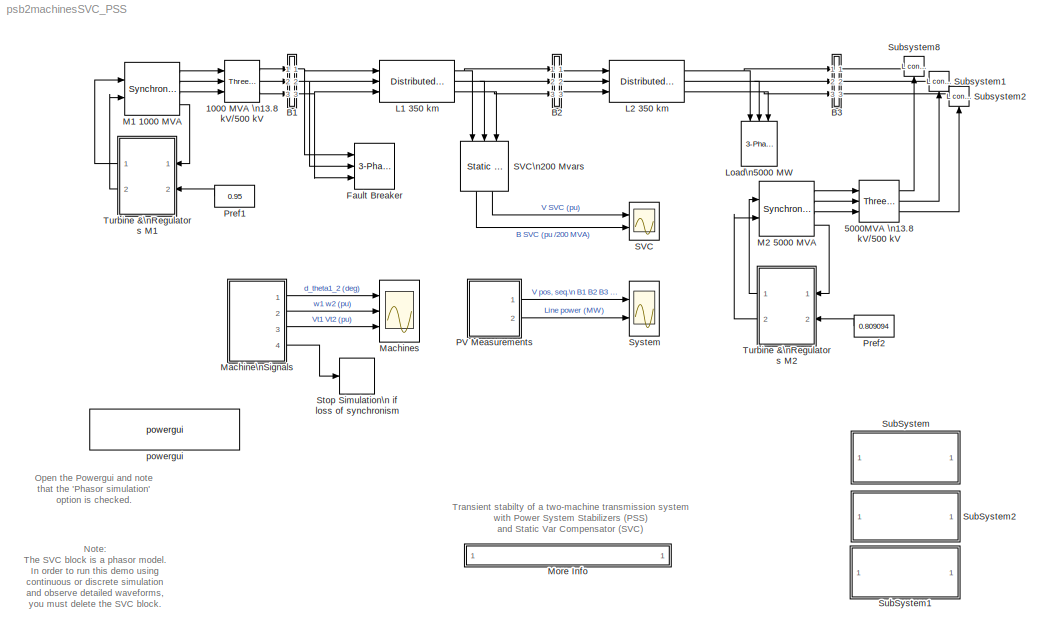
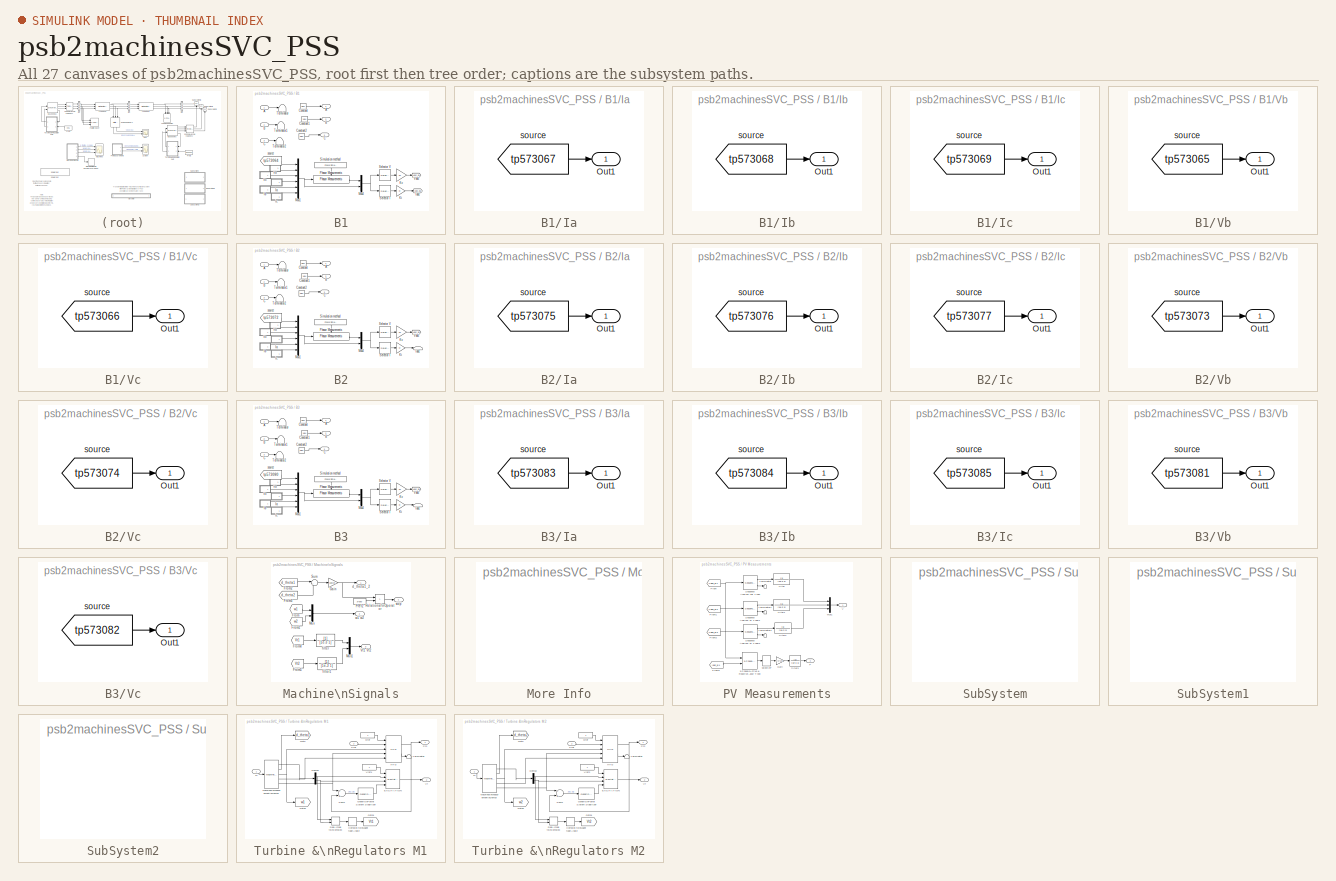
[diagram: thumbnail index - all 27 canvases of the model, root first then tree order]
MODEL psb2machinesSVC_PSS
KIND model
CONFIG InitFcn = powericon('psbinitsys',bdroot);
BLOCK [Reference] 1000 MVA \n13.8 kV//500 kV  REF=powerlib2/Elements/Three-phase\nTransformer\n(Two Windings)
  PSBOutputType = 1111
  Ports = [3, 3]
  ShowPortLabels = on
  SourceBlock = powerlib2/Elements/Three-phase\nTransformer\n(Two Windings)
  SourceType = Three-Phase Transformer (Two Windings)
  Tag = PoWeRsYsTeMbLoCk
  hyst = off
  initialslopes = [+1 +1 +1]
  lm = 500
  matfile = 'hysteresis'
  mesure = None
  nominal = [ 1000e6 60 ]
  params1 = [ 13.8e3 0.002  0.0]
  params2 = [ 500e3 0.002 0.12]
  phi0 = [ 0.8 , -0.8 , 0.7 ]
  rmag = 500
  sat = [ 0,0  ;  0.005,1.2  ;  1.0,1.4 ]
  sif = off
  type1 = Delta (D1)
  type2 = Yg
  ynsat = off
BLOCK [Reference] 5000MVA \n13.8 kV//500 kV  REF=powerlib2/Elements/Three-phase\nTransformer\n(Two Windings)
  PSBOutputType = 1111
  Ports = [3, 3]
  ShowPortLabels = on
  SourceBlock = powerlib2/Elements/Three-phase\nTransformer\n(Two Windings)
  SourceType = Three-Phase Transformer (Two Windings)
  Tag = PoWeRsYsTeMbLoCk
  hyst = off
  initialslopes = [+1 +1 +1]
  lm = 500
  matfile = 'hysteresis'
  mesure = None
  nominal = [ 5000e6 60 ]
  params1 = [ 13.8e3 0.002  0.0]
  params2 = [ 500e3 0.002 0.12]
  phi0 = [ 0.8 , -0.8 , 0.7 ]
  rmag = 500
  sat = [ 0,0  ;  0.005,1.2  ;  1.0,1.4 ]
  sif = off
  type1 = Delta (D1)
  type2 = Yg
  ynsat = off
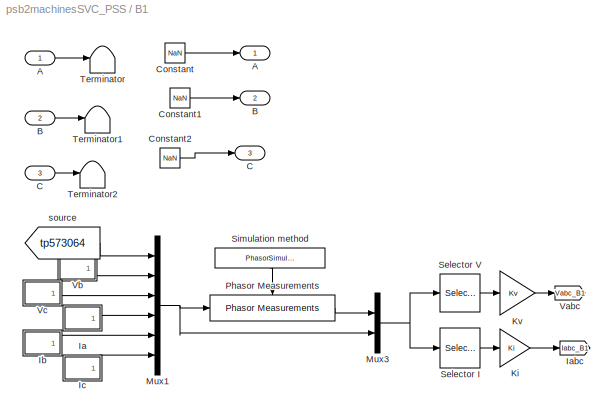
BLOCK [SubSystem] B1
  AncestorBlock = powerlib2/Measurements/Three-Phase\nV-I Measurement
  CloseFcn = %3phaseVImeasurement
  CopyFcn = powericon('psbloadfunction',gcbh,'3-Phase VI Measurement','VerifyPhasor');
  InitFcn = powericon('checksum',bdroot)
  LoadFcn = powericon('psbloadfunction',gcbh,'3-Phase VI Measurement','');
  MaskCallbackString = powericon('psbcallbacks',gcb,'Three-phase measurements',2);|powericon('psbcallbacks',gcb,'Three-phase measurements',2);||powericon('psbcallbacks',gcb,'Three-phase measurements',2);||powericon('psbcallbacks',gcb,'Three-phase measurements',2);|powericon('psbcallbacks',gcb,'Three-phase measurements',2);||powericon('psbcallbacks',gcb,'Three-phase measurements',4);|||||  <repeated x3 — deduplicated; at blocks: B1, B2, B3>
  MaskDescription = This block is used to measure three-phase voltages and currents in a circuit. When connected in series with a three-phase element, it return the three phase-to-ground voltages and line currents.\n\nThe block can output the voltages and currents in per unit values or in volts and amperes. Check the appropriate boxes if you want to output the voltages and currents  in pu  <repeated x3 — deduplicated; at blocks: B1, B2, B3>
  MaskEnableString = on,on,on,on,on,on,on,on,on,on,on,on,on,on
  MaskHelp = web(psbhelp)
  MaskIconFrame = on
  MaskIconOpaque = on
  MaskIconRotate = none
  MaskIconUnits = autoscale
  MaskInitialization = powericon('psbcallbacks',gcb,'Three-phase measurements',4);\nif  Vpu\n    xKv=1/(Vbase/sqrt(3)*sqrt(2));\nelse\n    xKv=1;\nend\nif  Ppu\n    xKi=1/(Pbase/Vbase/sqrt(3)*sqrt(2));\nelse\n    xKi=1;\nend\nswitch OutputType\ncase 1\n    OutputSelection  = [1:6];\n    PhasorModeV = [1:3];\n    NormalModeV = [7:9];\n    PhasorModeI = [4:6];\n    NormalModeI = [10:12];\n    Kv = xKv;\n    Ki = xKi;\ncas...<+826ch>  <repeated x3 — deduplicated; at blocks: B1, B2, B3>
  MaskPromptString = Voltage measurement|Use a label |Signal label  (use a From block to collect signal)|Voltage  in pu|Base voltage (Vrms phase-phase) :|Current measurement|Use a label|Signal label  (use a From block to collect signal)|Currents in pu|Base power ( VA 3 phase)|Output signal :|Phasor simulation|Equivalent circuit|PSBOutputType  <repeated x3 — deduplicated; at blocks: B1, B2, B3>
  MaskSelfModifiable = on
  MaskStyleString = popup(no|phase-to-ground|phase-to-phase),checkbox,edit,checkbox,edit,popup(no|yes),checkbox,edit,checkbox,edit,popup(Complex|Real-Imag|Magnitude-Angle|Magnitude),checkbox,edit,edit
  MaskTabNameString = ,,,,,,,,,,,,,
  MaskToolTipString = on,on,on,on,on,on,on,on,on,on,on,on,on,on
  MaskTunableValueString = off,off,off,on,on,off,off,off,on,on,on,on,on,on
  MaskType = 3-Phase VI Measurement
  MaskValueString = phase-to-ground|on|Vabc_B1|on|500e3|yes|on|Iabc_B1|on|100e6|Complex|on|0|11100
  MaskVarAliasString = ,,,,,,,,,,,,,
  MaskVariables = VChoice=@1;ualv=@2;labelV=&3;Vpu=@4;Vbase=@5;IChoice=@6;ualc=@7;labelC=&8;Ppu=@9;Pbase=@10;OutputType=@11;PhasorSimulation=@12;PSBequivalent=@13;PSBOutputType=&14;
  MaskVisibilityString = on,on,on,on,on,on,on,on,on,on,on,off,off,off
  MinAlgLoopOccurrences = off
  Ports = [3, 3]
  RTWSystemCode = Auto
  Tag = PoWeRsYsTeMmEaSuReMeNt
  TreatAsAtomicUnit = off
BLOCK [Inport] B1/A
  IconDisplay = Port number
  LatchInput = off
  Port = 1
BLOCK [Outport] B1/A 
  IconDisplay = Port number
BLOCK [Inport] B1/B
  IconDisplay = Port number
  LatchInput = off
  Port = 2
BLOCK [Outport] B1/B 
  IconDisplay = Port number
  Port = 2
BLOCK [Inport] B1/C
  IconDisplay = Port number
  LatchInput = off
  Port = 3
BLOCK [Outport] B1/C 
  IconDisplay = Port number
  Port = 3
BLOCK [Constant] B1/Constant
  Value = NaN
BLOCK [Constant] B1/Constant1
  Value = NaN
BLOCK [Constant] B1/Constant2
  Value = NaN
BLOCK [SubSystem] B1/Ia
  AncestorBlock = powerlib2/Measurements/Three-Phase\nV-I Measurement/Ia
  MinAlgLoopOccurrences = off
  Ports = [0, 1]
  RTWSystemCode = Auto
  TreatAsAtomicUnit = off
BLOCK [Outport] B1/Ia/Out1
  IconDisplay = Port number
BLOCK [From] B1/Ia/source
  DialogController = Simulink.DDGSource
  GotoTag = tp573067
BLOCK [Goto] B1/Iabc
  DialogController = Simulink.DDGSource
  GotoTag = Iabc_B1
  TagVisibility = global
BLOCK [SubSystem] B1/Ib
  AncestorBlock = powerlib2/Measurements/Three-Phase\nV-I Measurement/Ib
  MinAlgLoopOccurrences = off
  Ports = [0, 1]
  RTWSystemCode = Auto
  TreatAsAtomicUnit = off
BLOCK [Outport] B1/Ib/Out1
  IconDisplay = Port number
BLOCK [From] B1/Ib/source
  DialogController = Simulink.DDGSource
  GotoTag = tp573068
BLOCK [SubSystem] B1/Ic
  AncestorBlock = powerlib2/Measurements/Three-Phase\nV-I Measurement/Ic
  MinAlgLoopOccurrences = off
  Ports = [0, 1]
  RTWSystemCode = Auto
  TreatAsAtomicUnit = off
BLOCK [Outport] B1/Ic/Out1
  IconDisplay = Port number
BLOCK [From] B1/Ic/source
  DialogController = Simulink.DDGSource
  GotoTag = tp573069
BLOCK [Gain] B1/Ki
  Gain = Ki
BLOCK [Gain] B1/Kv
  Gain = Kv
BLOCK [Mux] B1/Mux1
  DisplayOption = bar
  Inputs = 6
  Ports = [6, 1]
BLOCK [Mux] B1/Mux3
  DisplayOption = bar
  Inputs = 2
  Ports = [2, 1]
BLOCK [Reference] B1/Phasor Measurements  REF=powerlib2/Measurements/Three-Phase\nV-I Measurement/Phasor Measurements
  DataTypeOverride = UseLocalSettings
  MinMaxOverflowLogging = UseLocalSettings
  Permissions = ReadWrite
  Ports = [1, 1, 1]
  RTWFcnNameOpts = Auto
  RTWFileNameOpts = Auto
  RTWSystemCode = Auto
  ShowPortLabels = on
  SimViewingDevice = off
  SourceBlock = powerlib2/Measurements/Three-Phase\nV-I Measurement/Phasor Measurements
  SourceType = SubSystem
  TreatAsAtomicUnit = on
BLOCK [Selector] B1/Selector I
  Elements = SelectionModeI
  InputPortWidth = length(OutputSelection)+6
  Ports = [1, 1]
BLOCK [Selector] B1/Selector V
  Elements = SelectionModeV
  InputPortWidth = length(OutputSelection)+6
  Ports = [1, 1]
BLOCK [Constant] B1/Simulation method
  Value = PhasorSimulation
BLOCK [Terminator] B1/Terminator
BLOCK [Terminator] B1/Terminator1
BLOCK [Terminator] B1/Terminator2
BLOCK [Goto] B1/Vabc
  DialogController = Simulink.DDGSource
  GotoTag = Vabc_B1
  TagVisibility = global
BLOCK [SubSystem] B1/Vb
  AncestorBlock = powerlib2/Measurements/Three-Phase\nV-I Measurement/Vb
  MinAlgLoopOccurrences = off
  Ports = [0, 1]
  RTWSystemCode = Auto
  TreatAsAtomicUnit = off
BLOCK [Outport] B1/Vb/Out1
  IconDisplay = Port number
BLOCK [From] B1/Vb/source
  DialogController = Simulink.DDGSource
  GotoTag = tp573065
BLOCK [SubSystem] B1/Vc
  AncestorBlock = powerlib2/Measurements/Three-Phase\nV-I Measurement/Vc
  MinAlgLoopOccurrences = off
  Ports = [0, 1]
  RTWSystemCode = Auto
  TreatAsAtomicUnit = off
BLOCK [Outport] B1/Vc/Out1
  IconDisplay = Port number
BLOCK [From] B1/Vc/source
  DialogController = Simulink.DDGSource
  GotoTag = tp573066
BLOCK [From] B1/source
  DialogController = Simulink.DDGSource
  GotoTag = tp573064
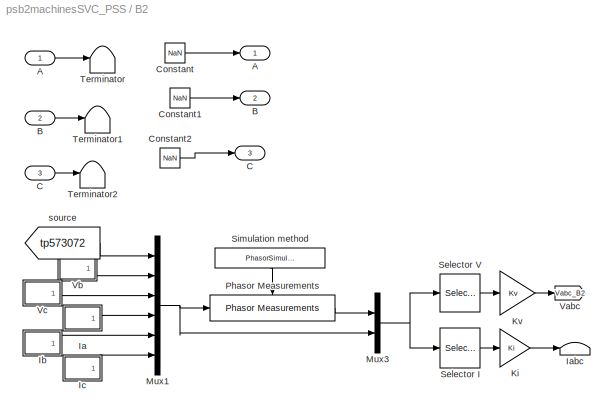
BLOCK [SubSystem] B2
  AncestorBlock = powerlib2/Measurements/Three-Phase\nV-I Measurement
  CloseFcn = %3phaseVImeasurement
  CopyFcn = powericon('psbloadfunction',gcbh,'3-Phase VI Measurement','VerifyPhasor');
  InitFcn = powericon('checksum',bdroot)
  LoadFcn = powericon('psbloadfunction',gcbh,'3-Phase VI Measurement','');
  MaskEnableString = on,on,on,on,on,on,on,on,on,on,on,on,on,on
  MaskHelp = web(psbhelp)
  MaskIconFrame = on
  MaskIconOpaque = on
  MaskIconRotate = none
  MaskIconUnits = autoscale
  MaskSelfModifiable = on
  MaskStyleString = popup(no|phase-to-ground|phase-to-phase),checkbox,edit,checkbox,edit,popup(no|yes),checkbox,edit,checkbox,edit,popup(Complex|Real-Imag|Magnitude-Angle|Magnitude),checkbox,edit,edit
  MaskTabNameString = ,,,,,,,,,,,,,
  MaskToolTipString = on,on,on,on,on,on,on,on,on,on,on,on,on,on
  MaskTunableValueString = off,off,off,on,on,off,off,off,on,on,on,on,on,on
  MaskType = 3-Phase VI Measurement
  MaskValueString = phase-to-ground|on|Vabc_B2|on|500e3|no|off|I1|off|100e6|Complex|on|0|11100
  MaskVarAliasString = ,,,,,,,,,,,,,
  MaskVariables = VChoice=@1;ualv=@2;labelV=&3;Vpu=@4;Vbase=@5;IChoice=@6;ualc=@7;labelC=&8;Ppu=@9;Pbase=@10;OutputType=@11;PhasorSimulation=@12;PSBequivalent=@13;PSBOutputType=&14;
  MaskVisibilityString = on,on,on,on,on,on,off,off,off,off,on,off,off,off
  MinAlgLoopOccurrences = off
  Ports = [3, 3]
  RTWSystemCode = Auto
  Tag = PoWeRsYsTeMmEaSuReMeNt
  TreatAsAtomicUnit = off
BLOCK [Inport] B2/A
  IconDisplay = Port number
  LatchInput = off
  Port = 1
BLOCK [Outport] B2/A 
  IconDisplay = Port number
BLOCK [Inport] B2/B
  IconDisplay = Port number
  LatchInput = off
  Port = 2
BLOCK [Outport] B2/B 
  IconDisplay = Port number
  Port = 2
BLOCK [Inport] B2/C
  IconDisplay = Port number
  LatchInput = off
  Port = 3
BLOCK [Outport] B2/C 
  IconDisplay = Port number
  Port = 3
BLOCK [Constant] B2/Constant
  Value = NaN
BLOCK [Constant] B2/Constant1
  Value = NaN
BLOCK [Constant] B2/Constant2
  Value = NaN
BLOCK [SubSystem] B2/Ia
  AncestorBlock = powerlib2/Measurements/Three-Phase\nV-I Measurement/Ia
  MinAlgLoopOccurrences = off
  Ports = [0, 1]
  RTWSystemCode = Auto
  TreatAsAtomicUnit = off
BLOCK [Outport] B2/Ia/Out1
  IconDisplay = Port number
BLOCK [From] B2/Ia/source
  DialogController = Simulink.DDGSource
  GotoTag = tp573075
BLOCK [Terminator] B2/Iabc
BLOCK [SubSystem] B2/Ib
  AncestorBlock = powerlib2/Measurements/Three-Phase\nV-I Measurement/Ib
  MinAlgLoopOccurrences = off
  Ports = [0, 1]
  RTWSystemCode = Auto
  TreatAsAtomicUnit = off
BLOCK [Outport] B2/Ib/Out1
  IconDisplay = Port number
BLOCK [From] B2/Ib/source
  DialogController = Simulink.DDGSource
  GotoTag = tp573076
BLOCK [SubSystem] B2/Ic
  AncestorBlock = powerlib2/Measurements/Three-Phase\nV-I Measurement/Ic
  MinAlgLoopOccurrences = off
  Ports = [0, 1]
  RTWSystemCode = Auto
  TreatAsAtomicUnit = off
BLOCK [Outport] B2/Ic/Out1
  IconDisplay = Port number
BLOCK [From] B2/Ic/source
  DialogController = Simulink.DDGSource
  GotoTag = tp573077
BLOCK [Gain] B2/Ki
  Gain = Ki
BLOCK [Gain] B2/Kv
  Gain = Kv
BLOCK [Mux] B2/Mux1
  DisplayOption = bar
  Inputs = 6
  Ports = [6, 1]
BLOCK [Mux] B2/Mux3
  DisplayOption = bar
  Inputs = 2
  Ports = [2, 1]
BLOCK [Reference] B2/Phasor Measurements  REF=powerlib2/Measurements/Three-Phase\nV-I Measurement/Phasor Measurements
  DataTypeOverride = UseLocalSettings
  MinMaxOverflowLogging = UseLocalSettings
  Permissions = ReadWrite
  Ports = [1, 1, 1]
  RTWFcnNameOpts = Auto
  RTWFileNameOpts = Auto
  RTWSystemCode = Auto
  ShowPortLabels = on
  SimViewingDevice = off
  SourceBlock = powerlib2/Measurements/Three-Phase\nV-I Measurement/Phasor Measurements
  SourceType = SubSystem
  TreatAsAtomicUnit = on
BLOCK [Selector] B2/Selector I
  Elements = SelectionModeI
  InputPortWidth = length(OutputSelection)+6
  Ports = [1, 1]
BLOCK [Selector] B2/Selector V
  Elements = SelectionModeV
  InputPortWidth = length(OutputSelection)+6
  Ports = [1, 1]
BLOCK [Constant] B2/Simulation method
  Value = PhasorSimulation
BLOCK [Terminator] B2/Terminator
BLOCK [Terminator] B2/Terminator1
BLOCK [Terminator] B2/Terminator2
BLOCK [Goto] B2/Vabc
  DialogController = Simulink.DDGSource
  GotoTag = Vabc_B2
  TagVisibility = global
BLOCK [SubSystem] B2/Vb
  AncestorBlock = powerlib2/Measurements/Three-Phase\nV-I Measurement/Vb
  MinAlgLoopOccurrences = off
  Ports = [0, 1]
  RTWSystemCode = Auto
  TreatAsAtomicUnit = off
BLOCK [Outport] B2/Vb/Out1
  IconDisplay = Port number
BLOCK [From] B2/Vb/source
  DialogController = Simulink.DDGSource
  GotoTag = tp573073
BLOCK [SubSystem] B2/Vc
  AncestorBlock = powerlib2/Measurements/Three-Phase\nV-I Measurement/Vc
  MinAlgLoopOccurrences = off
  Ports = [0, 1]
  RTWSystemCode = Auto
  TreatAsAtomicUnit = off
BLOCK [Outport] B2/Vc/Out1
  IconDisplay = Port number
BLOCK [From] B2/Vc/source
  DialogController = Simulink.DDGSource
  GotoTag = tp573074
BLOCK [From] B2/source
  DialogController = Simulink.DDGSource
  GotoTag = tp573072
BLOCK [SubSystem] B3
  AncestorBlock = powerlib2/Measurements/Three-Phase\nV-I Measurement
  CloseFcn = %3phaseVImeasurement
  CopyFcn = powericon('psbloadfunction',gcbh,'3-Phase VI Measurement','VerifyPhasor');
  InitFcn = powericon('checksum',bdroot)
  LoadFcn = powericon('psbloadfunction',gcbh,'3-Phase VI Measurement','');
  MaskEnableString = on,on,on,on,on,on,on,on,on,on,on,on,on,on
  MaskHelp = web(psbhelp)
  MaskIconFrame = on
  MaskIconOpaque = on
  MaskIconRotate = none
  MaskIconUnits = autoscale
  MaskSelfModifiable = on
  MaskStyleString = popup(no|phase-to-ground|phase-to-phase),checkbox,edit,checkbox,edit,popup(no|yes),checkbox,edit,checkbox,edit,popup(Complex|Real-Imag|Magnitude-Angle|Magnitude),checkbox,edit,edit
  MaskTabNameString = ,,,,,,,,,,,,,
  MaskToolTipString = on,on,on,on,on,on,on,on,on,on,on,on,on,on
  MaskTunableValueString = off,off,off,on,on,off,off,off,on,on,on,on,on,on
  MaskType = 3-Phase VI Measurement
  MaskValueString = phase-to-ground|on|Vabc_B3|on|500e3|no|off|I1|off|100e6|Complex|on|0|11100
  MaskVarAliasString = ,,,,,,,,,,,,,
  MaskVariables = VChoice=@1;ualv=@2;labelV=&3;Vpu=@4;Vbase=@5;IChoice=@6;ualc=@7;labelC=&8;Ppu=@9;Pbase=@10;OutputType=@11;PhasorSimulation=@12;PSBequivalent=@13;PSBOutputType=&14;
  MaskVisibilityString = on,on,on,on,on,on,off,off,off,off,on,off,off,off
  MinAlgLoopOccurrences = off
  Ports = [3, 3]
  RTWSystemCode = Auto
  Tag = PoWeRsYsTeMmEaSuReMeNt
  TreatAsAtomicUnit = off
BLOCK [Inport] B3/A
  IconDisplay = Port number
  LatchInput = off
  Port = 1
BLOCK [Outport] B3/A 
  IconDisplay = Port number
BLOCK [Inport] B3/B
  IconDisplay = Port number
  LatchInput = off
  Port = 2
BLOCK [Outport] B3/B 
  IconDisplay = Port number
  Port = 2
BLOCK [Inport] B3/C
  IconDisplay = Port number
  LatchInput = off
  Port = 3
BLOCK [Outport] B3/C 
  IconDisplay = Port number
  Port = 3
BLOCK [Constant] B3/Constant
  Value = NaN
BLOCK [Constant] B3/Constant1
  Value = NaN
BLOCK [Constant] B3/Constant2
  Value = NaN
BLOCK [SubSystem] B3/Ia
  AncestorBlock = powerlib2/Measurements/Three-Phase\nV-I Measurement/Ia
  MinAlgLoopOccurrences = off
  Ports = [0, 1]
  RTWSystemCode = Auto
  TreatAsAtomicUnit = off
BLOCK [Outport] B3/Ia/Out1
  IconDisplay = Port number
BLOCK [From] B3/Ia/source
  DialogController = Simulink.DDGSource
  GotoTag = tp573083
BLOCK [Terminator] B3/Iabc
BLOCK [SubSystem] B3/Ib
  AncestorBlock = powerlib2/Measurements/Three-Phase\nV-I Measurement/Ib
  MinAlgLoopOccurrences = off
  Ports = [0, 1]
  RTWSystemCode = Auto
  TreatAsAtomicUnit = off
BLOCK [Outport] B3/Ib/Out1
  IconDisplay = Port number
BLOCK [From] B3/Ib/source
  DialogController = Simulink.DDGSource
  GotoTag = tp573084
BLOCK [SubSystem] B3/Ic
  AncestorBlock = powerlib2/Measurements/Three-Phase\nV-I Measurement/Ic
  MinAlgLoopOccurrences = off
  Ports = [0, 1]
  RTWSystemCode = Auto
  TreatAsAtomicUnit = off
BLOCK [Outport] B3/Ic/Out1
  IconDisplay = Port number
BLOCK [From] B3/Ic/source
  DialogController = Simulink.DDGSource
  GotoTag = tp573085
BLOCK [Gain] B3/Ki
  Gain = Ki
BLOCK [Gain] B3/Kv
  Gain = Kv
BLOCK [Mux] B3/Mux1
  DisplayOption = bar
  Inputs = 6
  Ports = [6, 1]
BLOCK [Mux] B3/Mux3
  DisplayOption = bar
  Inputs = 2
  Ports = [2, 1]
BLOCK [Reference] B3/Phasor Measurements  REF=powerlib2/Measurements/Three-Phase\nV-I Measurement/Phasor Measurements
  DataTypeOverride = UseLocalSettings
  MinMaxOverflowLogging = UseLocalSettings
  Permissions = ReadWrite
  Ports = [1, 1, 1]
  RTWFcnNameOpts = Auto
  RTWFileNameOpts = Auto
  RTWSystemCode = Auto
  ShowPortLabels = on
  SimViewingDevice = off
  SourceBlock = powerlib2/Measurements/Three-Phase\nV-I Measurement/Phasor Measurements
  SourceType = SubSystem
  TreatAsAtomicUnit = on
BLOCK [Selector] B3/Selector I
  Elements = SelectionModeI
  InputPortWidth = length(OutputSelection)+6
  Ports = [1, 1]
BLOCK [Selector] B3/Selector V
  Elements = SelectionModeV
  InputPortWidth = length(OutputSelection)+6
  Ports = [1, 1]
BLOCK [Constant] B3/Simulation method
  Value = PhasorSimulation
BLOCK [Terminator] B3/Terminator
BLOCK [Terminator] B3/Terminator1
BLOCK [Terminator] B3/Terminator2
BLOCK [Goto] B3/Vabc
  DialogController = Simulink.DDGSource
  GotoTag = Vabc_B3
  TagVisibility = global
BLOCK [SubSystem] B3/Vb
  AncestorBlock = powerlib2/Measurements/Three-Phase\nV-I Measurement/Vb
  MinAlgLoopOccurrences = off
  Ports = [0, 1]
  RTWSystemCode = Auto
  TreatAsAtomicUnit = off
BLOCK [Outport] B3/Vb/Out1
  IconDisplay = Port number
BLOCK [From] B3/Vb/source
  DialogController = Simulink.DDGSource
  GotoTag = tp573081
BLOCK [SubSystem] B3/Vc
  AncestorBlock = powerlib2/Measurements/Three-Phase\nV-I Measurement/Vc
  MinAlgLoopOccurrences = off
  Ports = [0, 1]
  RTWSystemCode = Auto
  TreatAsAtomicUnit = off
BLOCK [Outport] B3/Vc/Out1
  IconDisplay = Port number
BLOCK [From] B3/Vc/source
  DialogController = Simulink.DDGSource
  GotoTag = tp573082
BLOCK [From] B3/source
  DialogController = Simulink.DDGSource
  GotoTag = tp573080
BLOCK [Reference] Fault Breaker  REF=powerlib2/Elements/3-Phase Fault
  Cp = inf
  Ports = [3]
  Rdef = 0.001
  Rp = 1e6
  Rt = 0.001
  ShowPortLabels = on
  SourceBlock = powerlib2/Elements/3-Phase Fault
  SourceType = Three-Phase Fault
  Ts = 0
  comext = off
  init_statext = [0 0 1]
  mesure = None
  sa = on
  sb = off
  sc = off
  st = on
  sw_status = [1 0]
  sw_times = [ 0.1 0.1+6.0/60]
BLOCK [Reference] L1 350 km  REF=powerlib2/Elements/Distributed Parameters Line
  PSBOutputType = 111111111111111111111111111111
  Ports = [3, 3]
  ShowPortLabels = on
  SourceBlock = powerlib2/Elements/Distributed Parameters Line
  SourceType = Distributed Parameters Line
  Tag = PoWeRsYsTeMbLoCk
  c = [13.33e-9  8.297e-9]
  f = 60
  l = [0.8737e-3  3.220e-3]
  lgt = 350
  mesure = None
  n = 3
  r = [0.01755  0.2758]
  x1 = [0 -1.745e-008 4.874e+005 -1.124e+005;0.0003618 -1.101e-008 4.982e+005 -4.51e+004;0.0007236 -4.365e-009 4.997e+005 2.307e+004;0.001085 2.363e-009 4.919e+005 9.08e+004;0.001447 9.047e-009 4.75e+005 1.569e+005;0.001809 1.556e-008 4.493e+005 2.2e+005]
  x2 = [0 8.099e-009 4.009e+005 -3.067e+005;0.0003618 7.338e-009 4.389e+005 -2.493e+005;0.0007236 6.44e-009 4.687e+005 -1.873e+005;0.001085 5.423e-009 4.898e+005 -1.218e+005;0.001447 4.305e-009 5.019e+005 -5.41e+004;0.001809 3.107e-009 5.046e+005 1.464e+004]
  x3 = [0 7.745e-011 13.12 -184.5;0.0003618 8.905e-011 38.08 -181;0.0007236 9.899e-011 62.33 -174.1;0.001085 1.071e-010 85.43 -164;0.001447 1.132e-010 106.9 -150.9;0.001809 1.172e-010 126.5 -134.9]
  x4 = [0 -1.132e-010 3024 -2208;0.0003618 -1.172e-010 3296 -1776;0.0007236 -1.19e-010 3507 -1312;0.001085 -1.186e-010 3652 -822.8;0.001447 -1.16e-010 3730 -318.5;0.001809 -1.113e-010 3739 191.7]
  x5 = 0.001809
BLOCK [Reference] L2 350 km  REF=powerlib2/Elements/Distributed Parameters Line
  PSBOutputType = 111111111111111111111111111111
  Ports = [3, 3]
  ShowPortLabels = on
  SourceBlock = powerlib2/Elements/Distributed Parameters Line
  SourceType = Distributed Parameters Line
  Tag = PoWeRsYsTeMbLoCk
  c = [13.33e-9  8.297e-9]
  f = 60
  l = [0.8737e-3  3.220e-3]
  lgt = 350
  mesure = None
  n = 3
  r = [0.01755  0.2758]
  x1 = [0 8.099e-009 4.009e+005 -3.067e+005;0.0003618 7.338e-009 4.389e+005 -2.493e+005;0.0007236 6.44e-009 4.687e+005 -1.873e+005;0.001085 5.423e-009 4.898e+005 -1.218e+005;0.001447 4.305e-009 5.019e+005 -5.41e+004;0.001809 3.107e-009 5.046e+005 1.464e+004]
  x2 = [0 2.948e-008 2.377e+005 -4.356e+005;0.0003618 2.166e-008 2.947e+005 -3.992e+005;0.0007236 1.345e-008 3.463e+005 -3.555e+005;0.001085 4.977e-009 3.914e+005 -3.051e+005;0.001447 -3.584e-009 4.292e+005 -2.49e+005;0.001809 -1.208e-008 4.591e+005 -1.883e+005]
  x3 = [0 1.376e-010 52.72 -145;0.0003618 1.394e-010 71.94 -136.5;0.0007236 1.386e-010 89.83 -125.4;0.001085 1.352e-010 106.1 -112;0.001447 1.292e-010 120.3 -96.59;0.001809 1.209e-010 132.3 -79.33]
  x4 = [0 -5.233e-011 1740 -3266;0.0003618 -6.396e-011 2168 -2999;0.0007236 -7.44e-011 2556 -2677;0.001085 -8.346e-011 2896 -2304;0.001447 -9.097e-011 3183 -1889;0.001809 -9.679e-011 3410 -1439]
  x5 = 0.001809
BLOCK [Reference] Load\n5000 MW  REF=powerlib2/Elements/3-Phase\nParallel RLC Load
  P3 = 5000e6
  Ports = [3]
  QC3 = 0
  QL3 = 0
  ShowPortLabels = on
  SourceBlock = powerlib2/Elements/3-Phase\nParallel RLC Load
  SourceType = 3-phase parallel RLC load
  Vpp = 500e3
  fn = 60
BLOCK [Reference] M1 1000 MVA  REF=powerlib2/Machines/Synchronous Machine\npu Standard
  LoadFlowParameters = [1 950000000 0 0]
  PSBOutputType = 1110
  Ports = [2, 4]
  ShowPortLabels = on
  SourceBlock = powerlib2/Machines/Synchronous Machine\npu Standard
  SourceType = Synchronous Machine
  Tag = PoWeRsYsTeMbLoCk
  dAxisT = Short-circuit
  iounits = 0.5
  qAxisT = Open-circuit
  rotorType = Salient-pole
  x1 = [1000E6  13800   60 ]
  x2 = [ 1.305, 0.296, 0.252, 0.474, 0.243, 0.18 ]
  x2b = [ 31 32 33 34 35 36 37 ]
  x3 = [ 1.01, 0.053, 0.1 ]
  x3a = []
  x3b = []
  x3c = []
  x3d = []
  x3e = []
  x3f = []
  x3g = []
  x4 = 2.8544e-3
  x5 = [ 3.7 0  32]
  x6 = [0 -16.6861 0.950218 0.950218 0.950218 48.1093 -71.8907 168.109 1.44424]
  x7 = off
  x8 = [0.6404,0.7127,0.8441,0.9214,0.9956,1.082,1.19,1.316,1.457;0.7,0.7698,0.8872,0.9466,0.9969,1.046,1.1,1.151,1.201]
BLOCK [Reference] M2 5000 MVA  REF=powerlib2/Machines/Synchronous Machine\npu Standard
  LoadFlowParameters = [2 4000000000 0 0]
  PSBOutputType = 1110
  Ports = [2, 4]
  ShowPortLabels = on
  SourceBlock = powerlib2/Machines/Synchronous Machine\npu Standard
  SourceType = Synchronous Machine
  Tag = PoWeRsYsTeMbLoCk
  dAxisT = Short-circuit
  iounits = 0.5
  qAxisT = Open-circuit
  rotorType = Salient-pole
  x1 = [5000E6  13800   60 ]
  x2 = [ 1.305, 0.296, 0.252, 0.474, 0.243, 0.18 ]
  x2b = [ 31 32 33 34 35 36 37 ]
  x3 = [ 1.01, 0.053, 0.1 ]
  x3a = []
  x3b = []
  x3c = []
  x3d = []
  x3e = []
  x3f = []
  x3g = []
  x4 = 2.8544e-3
  x5 = [ 3.7 0  32]
  x6 = [0 -69.7487 0.812764 0.812764 0.812764 -5.44703 -125.447 114.553 1.40021]
  x7 = off
  x8 = [0.6404,0.7127,0.8441,0.9214,0.9956,1.082,1.19,1.316,1.457;0.7,0.7698,0.8872,0.9466,0.9969,1.046,1.1,1.151,1.201]
BLOCK [SubSystem] Machine\nSignals
  MinAlgLoopOccurrences = off
  Ports = [0, 4]
  RTWSystemCode = Auto
  TreatAsAtomicUnit = off
BLOCK [TransferFcn] Machine\nSignals/ filter
  Denominator = [1e-3 1]
BLOCK [TransferFcn] Machine\nSignals/ filter1
  Denominator = [1e-3 1]
BLOCK [From] Machine\nSignals/From
  CloseFcn = tagdialog Close
  DialogController = Simulink.DDGSource
  GotoTag = w1
BLOCK [From] Machine\nSignals/From1
  CloseFcn = tagdialog Close
  DialogController = Simulink.DDGSource
  GotoTag = w2
BLOCK [From] Machine\nSignals/From2
  CloseFcn = tagdialog Close
  DialogController = Simulink.DDGSource
  GotoTag = d_theta1
BLOCK [From] Machine\nSignals/From3
  CloseFcn = tagdialog Close
  DialogController = Simulink.DDGSource
  GotoTag = d_theta2
BLOCK [From] Machine\nSignals/From4
  CloseFcn = tagdialog Close
  DialogController = Simulink.DDGSource
  GotoTag = Vt1
BLOCK [From] Machine\nSignals/From5
  CloseFcn = tagdialog Close
  DialogController = Simulink.DDGSource
  GotoTag = Vt2
BLOCK [Gain] Machine\nSignals/Gain
  Gain = 180/pi
BLOCK [Mux] Machine\nSignals/Mux
  DisplayOption = bar
  Inputs = 2
  Ports = [2, 1]
BLOCK [Mux] Machine\nSignals/Mux1
  DisplayOption = bar
  Inputs = 2
  Ports = [2, 1]
BLOCK [Constant] Machine\nSignals/Pref2
  Value = 3*360
BLOCK [RelationalOperator] Machine\nSignals/Relational\nOperator
  Operator = >
BLOCK [Sum] Machine\nSignals/Sum
  IconShape = round
  Inputs = |+-
  Ports = [2, 1]
BLOCK [Outport] Machine\nSignals/Vt1 Vt2
  IconDisplay = Port number
  Port = 3
BLOCK [Outport] Machine\nSignals/d_theta1_2
  IconDisplay = Port number
BLOCK [Outport] Machine\nSignals/stop
  IconDisplay = Port number
  Port = 4
BLOCK [Outport] Machine\nSignals/w1 w2
  IconDisplay = Port number
  Port = 2
BLOCK [Scope] Machines
  DataFormat = StructureWithTime
  LimitDataPoints = off
  NumInputPorts = 3
  Ports = [3]
  SaveName = mach
  SaveToWorkspace = on
  TimeRange = 10
  YMax = 70~1.005~1.4
  YMin = 30~0.995~0
  ZoomMode = xonly
BLOCK [SubSystem] More Info
  MaskDisplay = disp('? : Double click here for more info')
  MaskIconFrame = off
  MaskIconOpaque = on
  MaskIconRotate = none
  MaskIconUnits = autoscale
  MinAlgLoopOccurrences = off
  OpenFcn = Powerlib3root = which('psb2machinesSVC_PSS');PSBroot = Powerlib3root(1:end-23);web([PSBroot,'psb2machines.html'])
  Ports = []
  RTWSystemCode = Auto
  TreatAsAtomicUnit = off
BLOCK [SubSystem] PV Measurements
  MinAlgLoopOccurrences = off
  Ports = [0, 2]
  RTWSystemCode = Auto
  TreatAsAtomicUnit = off
BLOCK [TransferFcn] PV Measurements/ filter
  Denominator = [1e-3 1]
BLOCK [TransferFcn] PV Measurements/ filter1
  Denominator = [1e-3 1]
BLOCK [TransferFcn] PV Measurements/ filter2
  Denominator = [1e-3 1]
BLOCK [TransferFcn] PV Measurements/ filter3
  Denominator = [1e-3 1]
BLOCK [Reference] PV Measurements/3-Phase\nActive & Reactive Power\n(Phasor Type)  REF=powerlib_extras/Phasor\nLibrary/3-Phase\nActive & Reactive Power\n(Phasor Type)
  Ports = [2, 1]
  ShowPortLabels = on
  SourceBlock = powerlib_extras/Phasor\nLibrary/3-Phase\nActive & Reactive Power\n(Phasor Type)
  SourceType = 3-Phase Active & Reactive Power (Phasor Type)
BLOCK [From] PV Measurements/From
  CloseFcn = tagdialog Close
  DialogController = Simulink.DDGSource
  GotoTag = Vabc_B1
BLOCK [From] PV Measurements/From1
  CloseFcn = tagdialog Close
  DialogController = Simulink.DDGSource
  GotoTag = Vabc_B2
BLOCK [From] PV Measurements/From2
  CloseFcn = tagdialog Close
  DialogController = Simulink.DDGSource
  GotoTag = Vabc_B3
BLOCK [From] PV Measurements/From3
  CloseFcn = tagdialog Close
  DialogController = Simulink.DDGSource
  GotoTag = Iabc_B1
BLOCK [Gain] PV Measurements/Gain
  Gain = 2/3*100
BLOCK [Mux] PV Measurements/Mux1
  DisplayOption = bar
  Inputs = 3
  Ports = [3, 1]
BLOCK [Outport] PV Measurements/P
  IconDisplay = Port number
  Port = 2
BLOCK [Reference] PV Measurements/Sequence Analyzer\n(Phasor Type)  REF=powerlib_extras/Phasor\nLibrary/Sequence Analyzer\n(Phasor Type)
  Ports = [1, 2]
  ShowPortLabels = on
  SourceBlock = powerlib_extras/Phasor\nLibrary/Sequence Analyzer\n(Phasor Type)
  SourceType = Sequence Analyzer (Phasor Type)
  seq = Positive
BLOCK [Reference] PV Measurements/Sequence Analyzer\n(Phasor Type)1  REF=powerlib_extras/Phasor\nLibrary/Sequence Analyzer\n(Phasor Type)
  Ports = [1, 2]
  ShowPortLabels = on
  SourceBlock = powerlib_extras/Phasor\nLibrary/Sequence Analyzer\n(Phasor Type)
  SourceType = Sequence Analyzer (Phasor Type)
  seq = Positive
BLOCK [Reference] PV Measurements/Sequence Analyzer\n(Phasor Type)2  REF=powerlib_extras/Phasor\nLibrary/Sequence Analyzer\n(Phasor Type)
  Ports = [1, 2]
  ShowPortLabels = on
  SourceBlock = powerlib_extras/Phasor\nLibrary/Sequence Analyzer\n(Phasor Type)
  SourceType = Sequence Analyzer (Phasor Type)
  seq = Positive
BLOCK [Terminator] PV Measurements/Terminator
BLOCK [Terminator] PV Measurements/Terminator1
BLOCK [Terminator] PV Measurements/Terminator2
BLOCK [Outport] PV Measurements/V
  IconDisplay = Port number
BLOCK [Selector] PV Measurements/select\nP
  InputPortWidth = 2
  Ports = [1, 1]
BLOCK [Constant] Pref1 
  Value = 0.95
BLOCK [Constant] Pref2
  Value = 0.809094
BLOCK [Scope] SVC
  DataFormat = StructureWithTime
  LimitDataPoints = off
  NumInputPorts = 2
  Ports = [2]
  SaveName = svc
  SaveToWorkspace = on
  TimeRange = 10
  YMax = 1.1~1
  YMin = 0.7~-1
  ZoomMode = xonly
BLOCK [Reference] SVC\n200 Mvars  REF=powerlib_extras/Phasor\nLibrary/Static Var Compensator\n(Phasor Type)
  Bref = 0.0
  Ports = [3, 2]
  Qnom = 200e6
  ShowPortLabels = on
  SourceBlock = powerlib_extras/Phasor\nLibrary/Static Var Compensator\n(Phasor Type)
  SourceType = Static Var Compensator (Phasor Type)
  Td = 4e-3
  Tm = 8e-3
  To = 0.1
  Vnom = 500e3
  Vref = 1.009
  Xs = 0.03
  mode = Fixed Susceptance
BLOCK [Stop] Stop Simulation\n if loss of synchronism
BLOCK [SubSystem] SubSystem
  MaskDisplay = disp('Show comparison\\nDetailed vs Phasor\\n simulation')
  MaskIconFrame = on
  MaskIconOpaque = on
  MaskIconRotate = none
  MaskIconUnits = autoscale
  MinAlgLoopOccurrences = off
  OpenFcn = openfig('psb2macSVC_PhasorVsDet.fig');
  Ports = []
  RTWSystemCode = Auto
  TreatAsAtomicUnit = off
BLOCK [SubSystem] SubSystem1
  MaskDisplay = disp('Show impact of SVC\\nfor 3-phase fault')
  MaskIconFrame = on
  MaskIconOpaque = on
  MaskIconRotate = none
  MaskIconUnits = autoscale
  MinAlgLoopOccurrences = off
  OpenFcn = openfig('psb2macSVC_3phfault.fig');
  Ports = []
  RTWSystemCode = Auto
  TreatAsAtomicUnit = off
BLOCK [SubSystem] SubSystem2
  MaskDisplay = disp('Show impact of PSS\\nfor 1-phase fault')
  MaskIconFrame = on
  MaskIconOpaque = on
  MaskIconRotate = none
  MaskIconUnits = autoscale
  MinAlgLoopOccurrences = off
  OpenFcn = openfig('psb2macSVC_1phfault.fig');
  Ports = []
  RTWSystemCode = Auto
  TreatAsAtomicUnit = off
BLOCK [Reference] Subsystem1  REF=powerlib2/Connectors/L connector
  Ports = [1, 0, 1]
  ShowPortLabels = on
  SourceBlock = powerlib2/Connectors/L connector
  SourceType = Bus Bar
  Tag = PoWeRsYsTeMbLoCk
BLOCK [Reference] Subsystem2  REF=powerlib2/Connectors/L connector
  Ports = [1, 0, 1]
  ShowPortLabels = on
  SourceBlock = powerlib2/Connectors/L connector
  SourceType = Bus Bar
  Tag = PoWeRsYsTeMbLoCk
BLOCK [Reference] Subsystem8  REF=powerlib2/Connectors/L connector
  Ports = [1, 0, 1]
  ShowPortLabels = on
  SourceBlock = powerlib2/Connectors/L connector
  SourceType = Bus Bar
  Tag = PoWeRsYsTeMbLoCk
BLOCK [Scope] System
  DataFormat = StructureWithTime
  LimitDataPoints = off
  NumInputPorts = 2
  Ports = [2]
  SaveName = mach1
  SaveToWorkspace = on
  TimeRange = 10
  YMax = 1.5~1500
  YMin = 0~0
  ZoomMode = yonly
BLOCK [SubSystem] Turbine &\nRegulators M1
  MinAlgLoopOccurrences = off
  Ports = [2, 2]
  RTWSystemCode = Auto
  TreatAsAtomicUnit = off
BLOCK [ComplexToMagnitudeAngle] Turbine &\nRegulators M1/Complex to\nMagnitude-Angle
  Output = Magnitude
  Ports = [1, 1]
BLOCK [Demux] Turbine &\nRegulators M1/Demux
  Outputs = 2
  Ports = [1, 2]
BLOCK [Reference] Turbine &\nRegulators M1/EXCITATION  REF=powerlib2/Machines/Excitation\nSystem
  Ports = [4, 1]
  ShowPortLabels = on
  SourceBlock = powerlib2/Machines/Excitation\nSystem
  SourceType = Excitation System
  damp = [ 0.001, 0.1 ]
  exc = [ 1, 0 ]
  lim = [ 0,  7, 0 ]
  reg = [ 200, 0.001 ]
  sat = [ 0, 0 ]
  tgr = [ 0, 0 ]
  tr = 20e-3
  v0 = [1,1.44424]
BLOCK [Reference] Turbine &\nRegulators M1/Generic\nPower System Stabilizer  REF=powerlib2/Machines/Generic\nPower System Stabilizer
  FreqRange = logspace(-2,2,500)
  K = 2.5
  MagdB_On = on
  Plot_On = off
  Ports = [1, 1]
  ShowPortLabels = on
  SourceBlock = powerlib2/Machines/Generic\nPower System Stabilizer
  SourceType = Generic Power System Stabilizer
  Tleadlag1 = [60e-3 1]
  Tleadlag2 = [0  0]
  Tsensor = 15e-3
  Twashout = 1
  VSlimits = [-0.15 0.15]
  Vinit = 0
BLOCK [Goto] Turbine &\nRegulators M1/Goto
  DialogController = Simulink.DDGSource
  GotoTag = d_theta1
  TagVisibility = global
BLOCK [Goto] Turbine &\nRegulators M1/Goto1
  DialogController = Simulink.DDGSource
  GotoTag = Vt1
  TagVisibility = global
BLOCK [Goto] Turbine &\nRegulators M1/Goto2
  DialogController = Simulink.DDGSource
  GotoTag = w1
  TagVisibility = global
BLOCK [Reference] Turbine &\nRegulators M1/HTG  REF=powerlib2/Machines/HTG
  Ports = [5, 2]
  ShowPortLabels = on
  SourceBlock = powerlib2/Machines/HTG
  SourceType = Hydraulic Turbine and Governor
  dref = 0
  gate = [  0.01  0.97518  -0.1  0.1 ]
  hyd = [  0  2.67  ]
  po = 0.952577
  reg = [  0.05  1.163  0.105  0  0.01  ]
  sm = [ 10/3  0.07 ]
BLOCK [Reference] Turbine &\nRegulators M1/Machines\nMeasurement\nDemux  REF=powerlib2/Machines/Machines\nMeasurement\nDemux
  Ports = [1, 5]
  ShowPortLabels = on
  SourceBlock = powerlib2/Machines/Machines\nMeasurement\nDemux
  SourceType = Machine measurements
  asm1 = on
  asm10 = on
  asm11 = on
  asm2 = on
  asm3 = on
  asm4 = on
  asm5 = on
  asm6 = on
  asm7 = on
  asm8 = on
  asm9 = on
  lastType = 2
  machType = Synchronous
  pmsm1 = on
  pmsm2 = on
  pmsm3 = on
  pmsm4 = on
  pmsm5 = on
  pmsm6 = on
  sm1 = off
  sm10 = on
  sm11 = off
  sm115 = off
  sm12 = off
  sm13 = on
  sm14 = off
  sm2 = off
  sm3 = off
  sm4 = off
  sm5 = off
  sm6 = on
  sm7 = on
  sm8 = on
  sm9 = off
  ssm1 = on
  ssm2 = on
  ssm3 = on
  ssm4 = on
  ssm5 = on
  ssm6 = on
BLOCK [Outport] Turbine &\nRegulators M1/Pm
  IconDisplay = Port number
  InitialOutput = 0
BLOCK [Inport] Turbine &\nRegulators M1/Pref
  IconDisplay = Port number
  LatchInput = off
  Port = 2
BLOCK [RealImagToComplex] Turbine &\nRegulators M1/Real-Imag to\nComplex
  Input = Real and imag
  Ports = [2, 1]
BLOCK [Sum] Turbine &\nRegulators M1/Sum2
  Inputs = -+
  Ports = [2, 1]
BLOCK [Terminator] Turbine &\nRegulators M1/Terminator
BLOCK [Outport] Turbine &\nRegulators M1/Vf
  IconDisplay = Port number
  InitialOutput = 0
  Port = 2
BLOCK [Constant] Turbine &\nRegulators M1/Vref1
BLOCK [Inport] Turbine &\nRegulators M1/m
  IconDisplay = Port number
  LatchInput = off
  Port = 1
BLOCK [Constant] Turbine &\nRegulators M1/wref
BLOCK [SubSystem] Turbine &\nRegulators M2
  MinAlgLoopOccurrences = off
  Ports = [2, 2]
  RTWSystemCode = Auto
  TreatAsAtomicUnit = off
BLOCK [ComplexToMagnitudeAngle] Turbine &\nRegulators M2/Complex to\nMagnitude-Angle
  Output = Magnitude
  Ports = [1, 1]
BLOCK [Demux] Turbine &\nRegulators M2/Demux
  Outputs = 2
  Ports = [1, 2]
BLOCK [Reference] Turbine &\nRegulators M2/EXCITATION  REF=powerlib2/Machines/Excitation\nSystem
  Ports = [4, 1]
  ShowPortLabels = on
  SourceBlock = powerlib2/Machines/Excitation\nSystem
  SourceType = Excitation System
  damp = [ 0.001, 0.1 ]
  exc = [ 1, 0 ]
  lim = [ 0,  7, 0 ]
  reg = [ 200, 0.001 ]
  sat = [ 0, 0 ]
  tgr = [ 0, 0 ]
  tr = 20e-3
  v0 = [1,1.40021]
BLOCK [Reference] Turbine &\nRegulators M2/Generic\nPower System Stabilizer  REF=powerlib2/Machines/Generic\nPower System Stabilizer
  FreqRange = logspace(-2,2,500)
  K = 2.5
  MagdB_On = on
  Plot_On = off
  Ports = [1, 1]
  ShowPortLabels = on
  SourceBlock = powerlib2/Machines/Generic\nPower System Stabilizer
  SourceType = Generic Power System Stabilizer
  Tleadlag1 = [60e-3 1]
  Tleadlag2 = [0  0]
  Tsensor = 15e-3
  Twashout = 1
  VSlimits = [-0.15 0.15]
  Vinit = 0
BLOCK [Goto] Turbine &\nRegulators M2/Goto
  DialogController = Simulink.DDGSource
  GotoTag = d_theta2
  TagVisibility = global
BLOCK [Goto] Turbine &\nRegulators M2/Goto1
  DialogController = Simulink.DDGSource
  GotoTag = Vt2
  TagVisibility = global
BLOCK [Goto] Turbine &\nRegulators M2/Goto2
  DialogController = Simulink.DDGSource
  GotoTag = w2
  TagVisibility = global
BLOCK [Reference] Turbine &\nRegulators M2/HTG  REF=powerlib2/Machines/HTG
  Ports = [5, 2]
  ShowPortLabels = on
  SourceBlock = powerlib2/Machines/HTG
  SourceType = Hydraulic Turbine and Governor
  dref = 0
  gate = [  0.01  0.97518  -0.1  0.1 ]
  hyd = [  0  2.67  ]
  po = 0.810979
  reg = [  0.05  1.163  0.105  0  0.01  ]
  sm = [ 10/3  0.07 ]
BLOCK [Reference] Turbine &\nRegulators M2/Machines\nMeasurement\nDemux  REF=powerlib2/Machines/Machines\nMeasurement\nDemux
  Ports = [1, 5]
  ShowPortLabels = on
  SourceBlock = powerlib2/Machines/Machines\nMeasurement\nDemux
  SourceType = Machine measurements
  asm1 = on
  asm10 = on
  asm11 = on
  asm2 = on
  asm3 = on
  asm4 = on
  asm5 = on
  asm6 = on
  asm7 = on
  asm8 = on
  asm9 = on
  lastType = 2
  machType = Synchronous
  pmsm1 = on
  pmsm2 = on
  pmsm3 = on
  pmsm4 = on
  pmsm5 = on
  pmsm6 = on
  sm1 = off
  sm10 = on
  sm11 = off
  sm115 = off
  sm12 = off
  sm13 = on
  sm14 = off
  sm2 = off
  sm3 = off
  sm4 = off
  sm5 = off
  sm6 = on
  sm7 = on
  sm8 = on
  sm9 = off
  ssm1 = on
  ssm2 = on
  ssm3 = on
  ssm4 = on
  ssm5 = on
  ssm6 = on
BLOCK [Outport] Turbine &\nRegulators M2/Pm
  IconDisplay = Port number
  InitialOutput = 0
BLOCK [Inport] Turbine &\nRegulators M2/Pref
  IconDisplay = Port number
  LatchInput = off
  Port = 2
BLOCK [RealImagToComplex] Turbine &\nRegulators M2/Real-Imag to\nComplex
  Input = Real and imag
  Ports = [2, 1]
BLOCK [Sum] Turbine &\nRegulators M2/Sum2
  Inputs = -+
  Ports = [2, 1]
BLOCK [Terminator] Turbine &\nRegulators M2/Terminator
BLOCK [Outport] Turbine &\nRegulators M2/Vf
  IconDisplay = Port number
  InitialOutput = 0
  Port = 2
BLOCK [Constant] Turbine &\nRegulators M2/Vref2
BLOCK [Inport] Turbine &\nRegulators M2/m
  IconDisplay = Port number
  LatchInput = off
  Port = 1
BLOCK [Constant] Turbine &\nRegulators M2/wref
BLOCK [Reference] powergui  REF=powerlib2/powergui
  DisplayStyle = off
  Frange = [0:2:500]
  FreqAxis = off
  MaxFrequency = 1000
  Ports = []
  RmsSteady = 1
  ShowPortLabels = on
  SourceBlock = powerlib2/powergui
  SourceType = PSB option menu block
  StartTime = 0.0
  Ts = 0
  Xlog = off
  Ylog = off
  ZoomFFT = on
  cycles = 1
  display = off
  echomessages = off
  frequency = 60
  frequencyindice = 1
  frequencyindicesteady = 1
  fundamental = 60
  methode = on
  save = off
  variable = ZData
ANNOTATION (root): Note:\nThe SVC block is a phasor model. \nIn order to run this demo using \ncontinuous or discrete simulation \nand observe detailed waveforms, \nyou must delete the SVC block.
ANNOTATION (root): Open the Powergui and note\nthat the 'Phasor simulation' \noption is checked.
ANNOTATION (root): Transient stabilty of a two-machine transmission system\nwith Power System Stabilizers (PSS) \nand Static Var Compensator (SVC)
LINE 1000 MVA \n13.8 kV//500 kV:1 -> B1:1
LINE 1000 MVA \n13.8 kV//500 kV:2 -> B1:2
LINE 1000 MVA \n13.8 kV//500 kV:3 -> B1:3
LINE 5000MVA \n13.8 kV//500 kV:1 -> Subsystem8:1
LINE 5000MVA \n13.8 kV//500 kV:2 -> Subsystem1:1
LINE 5000MVA \n13.8 kV//500 kV:3 -> Subsystem2:1
LINE B1/A:1 -> B1/Terminator:1
LINE B1/B:1 -> B1/Terminator1:1
LINE B1/C:1 -> B1/Terminator2:1
LINE B1/Constant1:1 -> B1/B :1
LINE B1/Constant2:1 -> B1/C :1
LINE B1/Constant:1 -> B1/A :1
LINE B1/Ia/source:1 -> B1/Ia/Out1:1
LINE B1/Ia:1 -> B1/Mux1:4
LINE B1/Ib/source:1 -> B1/Ib/Out1:1
LINE B1/Ib:1 -> B1/Mux1:5
LINE B1/Ic/source:1 -> B1/Ic/Out1:1
LINE B1/Ic:1 -> B1/Mux1:6
LINE B1/Ki:1 -> B1/Iabc:1
LINE B1/Kv:1 -> B1/Vabc:1
NET B1/Mux1:1 -> B1/Mux3:2, B1/Phasor Measurements:1
NET B1/Mux3:1 -> B1/Selector I:1, B1/Selector V:1
LINE B1/Phasor Measurements:1 -> B1/Mux3:1
LINE B1/Selector I:1 -> B1/Ki:1
LINE B1/Selector V:1 -> B1/Kv:1
LINE B1/Simulation method:1 -> B1/Phasor Measurements:enable
LINE B1/Vb/source:1 -> B1/Vb/Out1:1
LINE B1/Vb:1 -> B1/Mux1:2
LINE B1/Vc/source:1 -> B1/Vc/Out1:1
LINE B1/Vc:1 -> B1/Mux1:3
LINE B1/source:1 -> B1/Mux1:1
NET B1:1 -> Fault Breaker:1, L1 350 km:1
NET B1:2 -> Fault Breaker:2, L1 350 km:2
NET B1:3 -> Fault Breaker:3, L1 350 km:3
LINE B2/A:1 -> B2/Terminator:1
LINE B2/B:1 -> B2/Terminator1:1
LINE B2/C:1 -> B2/Terminator2:1
LINE B2/Constant1:1 -> B2/B :1
LINE B2/Constant2:1 -> B2/C :1
LINE B2/Constant:1 -> B2/A :1
LINE B2/Ia/source:1 -> B2/Ia/Out1:1
LINE B2/Ia:1 -> B2/Mux1:4
LINE B2/Ib/source:1 -> B2/Ib/Out1:1
LINE B2/Ib:1 -> B2/Mux1:5
LINE B2/Ic/source:1 -> B2/Ic/Out1:1
LINE B2/Ic:1 -> B2/Mux1:6
LINE B2/Ki:1 -> B2/Iabc:1
LINE B2/Kv:1 -> B2/Vabc:1
NET B2/Mux1:1 -> B2/Mux3:2, B2/Phasor Measurements:1
NET B2/Mux3:1 -> B2/Selector I:1, B2/Selector V:1
LINE B2/Phasor Measurements:1 -> B2/Mux3:1
LINE B2/Selector I:1 -> B2/Ki:1
LINE B2/Selector V:1 -> B2/Kv:1
LINE B2/Simulation method:1 -> B2/Phasor Measurements:enable
LINE B2/Vb/source:1 -> B2/Vb/Out1:1
LINE B2/Vb:1 -> B2/Mux1:2
LINE B2/Vc/source:1 -> B2/Vc/Out1:1
LINE B2/Vc:1 -> B2/Mux1:3
LINE B2/source:1 -> B2/Mux1:1
LINE B2:1 -> L2 350 km:1
LINE B2:2 -> L2 350 km:2
LINE B2:3 -> L2 350 km:3
LINE B3/A:1 -> B3/Terminator:1
LINE B3/B:1 -> B3/Terminator1:1
LINE B3/C:1 -> B3/Terminator2:1
LINE B3/Constant1:1 -> B3/B :1
LINE B3/Constant2:1 -> B3/C :1
LINE B3/Constant:1 -> B3/A :1
LINE B3/Ia/source:1 -> B3/Ia/Out1:1
LINE B3/Ia:1 -> B3/Mux1:4
LINE B3/Ib/source:1 -> B3/Ib/Out1:1
LINE B3/Ib:1 -> B3/Mux1:5
LINE B3/Ic/source:1 -> B3/Ic/Out1:1
LINE B3/Ic:1 -> B3/Mux1:6
LINE B3/Ki:1 -> B3/Iabc:1
LINE B3/Kv:1 -> B3/Vabc:1
NET B3/Mux1:1 -> B3/Mux3:2, B3/Phasor Measurements:1
NET B3/Mux3:1 -> B3/Selector I:1, B3/Selector V:1
LINE B3/Phasor Measurements:1 -> B3/Mux3:1
LINE B3/Selector I:1 -> B3/Ki:1
LINE B3/Selector V:1 -> B3/Kv:1
LINE B3/Simulation method:1 -> B3/Phasor Measurements:enable
LINE B3/Vb/source:1 -> B3/Vb/Out1:1
LINE B3/Vb:1 -> B3/Mux1:2
LINE B3/Vc/source:1 -> B3/Vc/Out1:1
LINE B3/Vc:1 -> B3/Mux1:3
LINE B3/source:1 -> B3/Mux1:1
LINE B3:1 -> Subsystem8:enable
LINE B3:2 -> Subsystem1:enable
LINE B3:3 -> Subsystem2:enable
NET L1 350 km:1 -> B2:1, SVC\n200 Mvars:1
NET L1 350 km:2 -> B2:2, SVC\n200 Mvars:2
NET L1 350 km:3 -> B2:3, SVC\n200 Mvars:3
NET L2 350 km:1 -> B3:1, Load\n5000 MW:1
NET L2 350 km:2 -> B3:2, Load\n5000 MW:2
NET L2 350 km:3 -> B3:3, Load\n5000 MW:3
LINE M1 1000 MVA:1 -> 1000 MVA \n13.8 kV//500 kV:1
LINE M1 1000 MVA:2 -> 1000 MVA \n13.8 kV//500 kV:2
LINE M1 1000 MVA:3 -> 1000 MVA \n13.8 kV//500 kV:3
LINE M1 1000 MVA:4 -> Turbine &\nRegulators M1:1
LINE M2 5000 MVA:1 -> 5000MVA \n13.8 kV//500 kV:1
LINE M2 5000 MVA:2 -> 5000MVA \n13.8 kV//500 kV:2
LINE M2 5000 MVA:3 -> 5000MVA \n13.8 kV//500 kV:3
LINE M2 5000 MVA:4 -> Turbine &\nRegulators M2:1
LINE Machine\nSignals/ filter1:1 -> Machine\nSignals/Mux1:2
LINE Machine\nSignals/ filter:1 -> Machine\nSignals/Mux1:1
LINE Machine\nSignals/From1:1 -> Machine\nSignals/Mux:2
LINE Machine\nSignals/From2:1 -> Machine\nSignals/Sum:1
LINE Machine\nSignals/From3:1 -> Machine\nSignals/Sum:2
LINE Machine\nSignals/From4:1 -> Machine\nSignals/ filter:1
LINE Machine\nSignals/From5:1 -> Machine\nSignals/ filter1:1
LINE Machine\nSignals/From:1 -> Machine\nSignals/Mux:1
NET Machine\nSignals/Gain:1 -> Machine\nSignals/Relational\nOperator:1, Machine\nSignals/d_theta1_2:1
LINE Machine\nSignals/Mux1:1 -> Machine\nSignals/Vt1 Vt2:1
LINE Machine\nSignals/Mux:1 -> Machine\nSignals/w1 w2:1
LINE Machine\nSignals/Pref2:1 -> Machine\nSignals/Relational\nOperator:2
LINE Machine\nSignals/Relational\nOperator:1 -> Machine\nSignals/stop:1
LINE Machine\nSignals/Sum:1 -> Machine\nSignals/Gain:1
LINE Machine\nSignals:1 -> Machines:1
LINE Machine\nSignals:2 -> Machines:2
LINE Machine\nSignals:3 -> Machines:3
LINE Machine\nSignals:4 -> Stop Simulation\n if loss of synchronism:1
LINE PV Measurements/ filter1:1 -> PV Measurements/Mux1:2
LINE PV Measurements/ filter2:1 -> PV Measurements/Mux1:3
LINE PV Measurements/ filter3:1 -> PV Measurements/P:1
LINE PV Measurements/ filter:1 -> PV Measurements/Mux1:1
LINE PV Measurements/3-Phase\nActive & Reactive Power\n(Phasor Type):1 -> PV Measurements/select\nP:1
LINE PV Measurements/From1:1 -> PV Measurements/Sequence Analyzer\n(Phasor Type)1:1
LINE PV Measurements/From2:1 -> PV Measurements/Sequence Analyzer\n(Phasor Type)2:1
LINE PV Measurements/From3:1 -> PV Measurements/3-Phase\nActive & Reactive Power\n(Phasor Type):2
NET PV Measurements/From:1 -> PV Measurements/3-Phase\nActive & Reactive Power\n(Phasor Type):1, PV Measurements/Sequence Analyzer\n(Phasor Type):1
LINE PV Measurements/Gain:1 -> PV Measurements/ filter3:1
LINE PV Measurements/Mux1:1 -> PV Measurements/V:1
LINE PV Measurements/Sequence Analyzer\n(Phasor Type)1:1 -> PV Measurements/ filter1:1
LINE PV Measurements/Sequence Analyzer\n(Phasor Type)1:2 -> PV Measurements/Terminator1:1
LINE PV Measurements/Sequence Analyzer\n(Phasor Type)2:1 -> PV Measurements/ filter2:1
LINE PV Measurements/Sequence Analyzer\n(Phasor Type)2:2 -> PV Measurements/Terminator2:1
LINE PV Measurements/Sequence Analyzer\n(Phasor Type):1 -> PV Measurements/ filter:1
LINE PV Measurements/Sequence Analyzer\n(Phasor Type):2 -> PV Measurements/Terminator:1
LINE PV Measurements/select\nP:1 -> PV Measurements/Gain:1
LINE PV Measurements:1 -> System:1
LINE PV Measurements:2 -> System:2
LINE Pref1 :1 -> Turbine &\nRegulators M1:2
LINE Pref2:1 -> Turbine &\nRegulators M2:2
LINE SVC\n200 Mvars:1 -> SVC:2
LINE SVC\n200 Mvars:2 -> SVC:1
LINE Turbine &\nRegulators M1/Complex to\nMagnitude-Angle:1 -> Turbine &\nRegulators M1/Goto1:1
NET Turbine &\nRegulators M1/Demux:1 -> Turbine &\nRegulators M1/EXCITATION:2, Turbine &\nRegulators M1/Real-Imag to\nComplex:1
NET Turbine &\nRegulators M1/Demux:2 -> Turbine &\nRegulators M1/EXCITATION:3, Turbine &\nRegulators M1/Real-Imag to\nComplex:2
LINE Turbine &\nRegulators M1/EXCITATION:1 -> Turbine &\nRegulators M1/Vf:1
LINE Turbine &\nRegulators M1/Generic\nPower System Stabilizer:1 -> Turbine &\nRegulators M1/EXCITATION:4
NET Turbine &\nRegulators M1/HTG:1 -> Turbine &\nRegulators M1/Pm:1, Turbine &\nRegulators M1/Sum2:2
LINE Turbine &\nRegulators M1/HTG:2 -> Turbine &\nRegulators M1/Terminator:1
LINE Turbine &\nRegulators M1/Machines\nMeasurement\nDemux:1 -> Turbine &\nRegulators M1/Demux:1
LINE Turbine &\nRegulators M1/Machines\nMeasurement\nDemux:2 -> Turbine &\nRegulators M1/Goto:1
NET Turbine &\nRegulators M1/Machines\nMeasurement\nDemux:3 -> Turbine &\nRegulators M1/Goto2:1, Turbine &\nRegulators M1/HTG:3
LINE Turbine &\nRegulators M1/Machines\nMeasurement\nDemux:4 -> Turbine &\nRegulators M1/HTG:5
NET Turbine &\nRegulators M1/Machines\nMeasurement\nDemux:5 -> Turbine &\nRegulators M1/HTG:4, Turbine &\nRegulators M1/Sum2:1
LINE Turbine &\nRegulators M1/Pref:1 -> Turbine &\nRegulators M1/HTG:2
LINE Turbine &\nRegulators M1/Real-Imag to\nComplex:1 -> Turbine &\nRegulators M1/Complex to\nMagnitude-Angle:1
LINE Turbine &\nRegulators M1/Sum2:1 -> Turbine &\nRegulators M1/Generic\nPower System Stabilizer:1
LINE Turbine &\nRegulators M1/Vref1:1 -> Turbine &\nRegulators M1/EXCITATION:1
LINE Turbine &\nRegulators M1/m:1 -> Turbine &\nRegulators M1/Machines\nMeasurement\nDemux:1
LINE Turbine &\nRegulators M1/wref:1 -> Turbine &\nRegulators M1/HTG:1
LINE Turbine &\nRegulators M1:1 -> M1 1000 MVA:1
LINE Turbine &\nRegulators M1:2 -> M1 1000 MVA:2
LINE Turbine &\nRegulators M2/Complex to\nMagnitude-Angle:1 -> Turbine &\nRegulators M2/Goto1:1
NET Turbine &\nRegulators M2/Demux:1 -> Turbine &\nRegulators M2/EXCITATION:2, Turbine &\nRegulators M2/Real-Imag to\nComplex:1
NET Turbine &\nRegulators M2/Demux:2 -> Turbine &\nRegulators M2/EXCITATION:3, Turbine &\nRegulators M2/Real-Imag to\nComplex:2
LINE Turbine &\nRegulators M2/EXCITATION:1 -> Turbine &\nRegulators M2/Vf:1
LINE Turbine &\nRegulators M2/Generic\nPower System Stabilizer:1 -> Turbine &\nRegulators M2/EXCITATION:4
NET Turbine &\nRegulators M2/HTG:1 -> Turbine &\nRegulators M2/Pm:1, Turbine &\nRegulators M2/Sum2:2
LINE Turbine &\nRegulators M2/HTG:2 -> Turbine &\nRegulators M2/Terminator:1
LINE Turbine &\nRegulators M2/Machines\nMeasurement\nDemux:1 -> Turbine &\nRegulators M2/Demux:1
LINE Turbine &\nRegulators M2/Machines\nMeasurement\nDemux:2 -> Turbine &\nRegulators M2/Goto:1
NET Turbine &\nRegulators M2/Machines\nMeasurement\nDemux:3 -> Turbine &\nRegulators M2/Goto2:1, Turbine &\nRegulators M2/HTG:3
LINE Turbine &\nRegulators M2/Machines\nMeasurement\nDemux:4 -> Turbine &\nRegulators M2/HTG:5
NET Turbine &\nRegulators M2/Machines\nMeasurement\nDemux:5 -> Turbine &\nRegulators M2/HTG:4, Turbine &\nRegulators M2/Sum2:1
LINE Turbine &\nRegulators M2/Pref:1 -> Turbine &\nRegulators M2/HTG:2
LINE Turbine &\nRegulators M2/Real-Imag to\nComplex:1 -> Turbine &\nRegulators M2/Complex to\nMagnitude-Angle:1
LINE Turbine &\nRegulators M2/Sum2:1 -> Turbine &\nRegulators M2/Generic\nPower System Stabilizer:1
LINE Turbine &\nRegulators M2/Vref2:1 -> Turbine &\nRegulators M2/EXCITATION:1
LINE Turbine &\nRegulators M2/m:1 -> Turbine &\nRegulators M2/Machines\nMeasurement\nDemux:1
LINE Turbine &\nRegulators M2/wref:1 -> Turbine &\nRegulators M2/HTG:1
LINE Turbine &\nRegulators M2:1 -> M2 5000 MVA:1
LINE Turbine &\nRegulators M2:2 -> M2 5000 MVA:2
note: NET lines group one-source signal fan-out (src -> all destinations, sorted); 1:1 wires keep LINE
